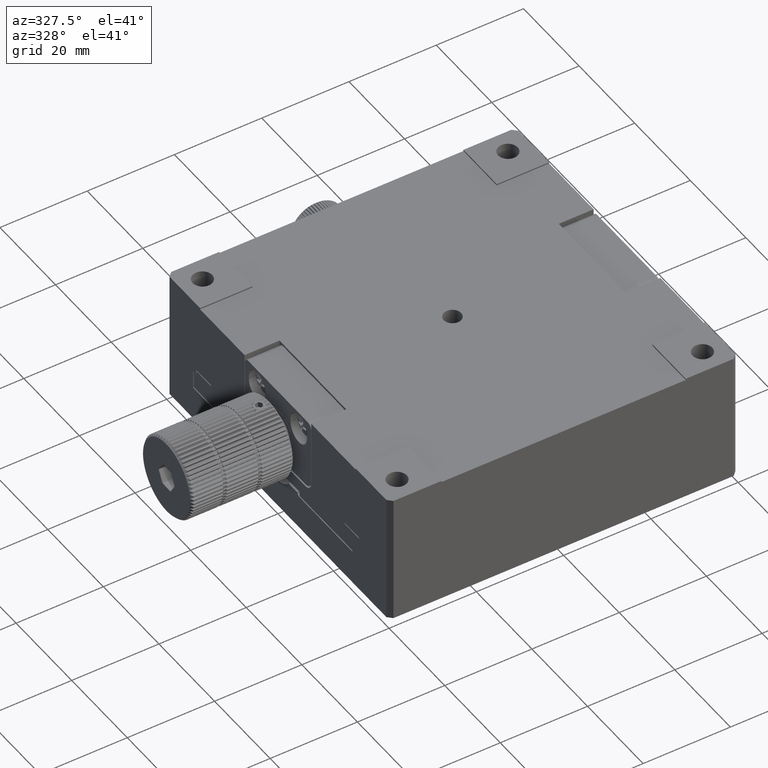
[diagram: clean part render]
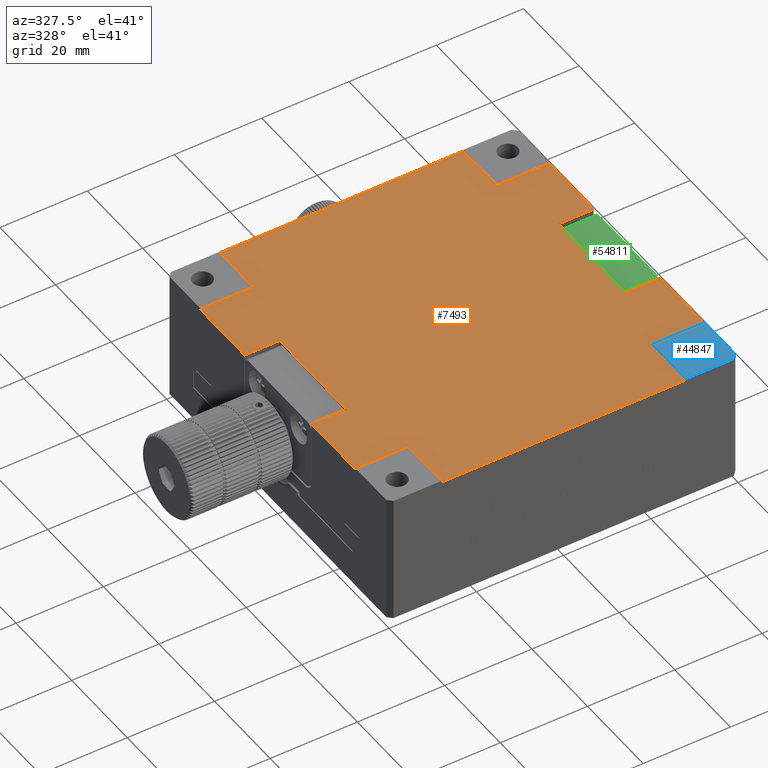
[diagram: same view with three faces highlighted in distinct colors, each labeled with its STEP entity id]
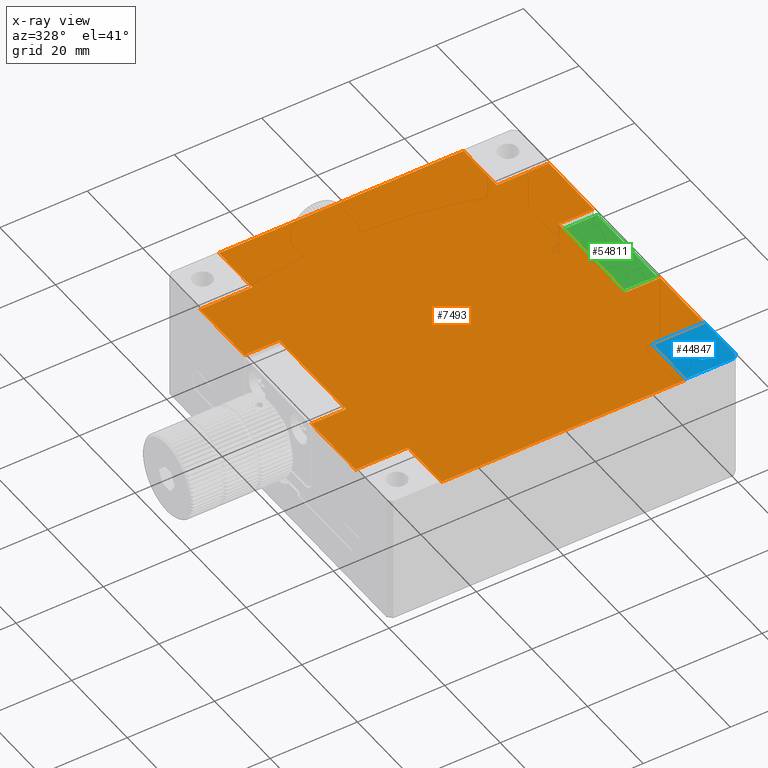
[diagram: x-ray of the same camera — body ghosted, the three highlighted faces saturated]
A machine part, auxiliary view with three faces highlighted in distinct colors.
The next image is the same camera in x-ray (body ghosted, the three faces saturated) — at least one of them is partly hidden behind the body in this view.
Their STEP definitions:

[orange] entity #7493 — the highlighted planar face has unit normal (0, 0, 1).
#352 = VERTEX_POINT ( 'NONE', #18145 ) ;
#856 = CARTESIAN_POINT ( 'NONE',  ( 0.000000000000000000, -28.00000000000000000, 129.7000000000000171 ) ) ;
#1447 = VERTEX_POINT ( 'NONE', #61356 ) ;
#1528 = CARTESIAN_POINT ( 'NONE',  ( -28.00000000000000355, 28.00000000000001421, 129.7000000000000171 ) ) ;
#2231 = ORIENTED_EDGE ( 'NONE', *, *, #67319, .T. ) ;
#2353 = CARTESIAN_POINT ( 'NONE',  ( -32.00000000000000000, -12.00000000000000000, 129.7000000000000171 ) ) ;
#2678 = EDGE_CURVE ( 'NONE', #78508, #37723, #74034, .T. ) ;
#4283 = LINE ( 'NONE', #25184, #82850 ) ;
#4801 = VERTEX_POINT ( 'NONE', #48318 ) ;
#5652 = DIRECTION ( 'NONE',  ( -1.000000000000000000, -0.000000000000000000, 0.000000000000000000 ) ) ;
#5664 = AXIS2_PLACEMENT_3D ( 'NONE', #89129, #34712, #69627 ) ;
#5899 = ORIENTED_EDGE ( 'NONE', *, *, #30148, .T. ) ;
#6060 = VECTOR ( 'NONE', #78170, 1000.000000000000000 ) ;
#6080 = CARTESIAN_POINT ( 'NONE',  ( 32.00000000000000711, -12.00000000000000178, 129.7000000000000171 ) ) ;
#7385 = EDGE_CURVE ( 'NONE', #74683, #43102, #75953, .T. ) ;
#7452 = CARTESIAN_POINT ( 'NONE',  ( 28.00000000000001066, 6.938893903907228378E-15, 129.7000000000000171 ) ) ;
#7493 = ADVANCED_FACE ( 'NONE', ( #35623, #75505 ), #35175, .T. ) ;
#7577 = ORIENTED_EDGE ( 'NONE', *, *, #73062, .T. ) ;
#7629 = LINE ( 'NONE', #856, #11258 ) ;
#7876 = EDGE_CURVE ( 'NONE', #15834, #15834, #36074, .T. ) ;
#7977 = CARTESIAN_POINT ( 'NONE',  ( -28.00000000000000355, 6.938893903907228378E-15, 129.7000000000000171 ) ) ;
#7995 = VERTEX_POINT ( 'NONE', #2353 ) ;
#8012 = VERTEX_POINT ( 'NONE', #77653 ) ;
#8711 = DIRECTION ( 'NONE',  ( 0.000000000000000000, -1.000000000000000000, -0.000000000000000000 ) ) ;
#9512 = VERTEX_POINT ( 'NONE', #38923 ) ;
#11172 = ORIENTED_EDGE ( 'NONE', *, *, #29482, .T. ) ;
#11202 = VERTEX_POINT ( 'NONE', #20922 ) ;
#11258 = VECTOR ( 'NONE', #28537, 1000.000000000000000 ) ;
#12250 = LINE ( 'NONE', #19515, #70641 ) ;
#13392 = CARTESIAN_POINT ( 'NONE',  ( 28.00000000000001066, 6.938893903907228378E-15, 129.7000000000000171 ) ) ;
#13845 = VECTOR ( 'NONE', #82331, 1000.000000000000000 ) ;
#14656 = LINE ( 'NONE', #70883, #65927 ) ;
#14693 = CARTESIAN_POINT ( 'NONE',  ( 0.000000000000000000, 12.00000000000000000, 129.7000000000000171 ) ) ;
#15709 = ORIENTED_EDGE ( 'NONE', *, *, #16547, .T. ) ;
#15743 = VECTOR ( 'NONE', #35691, 1000.000000000000000 ) ;
#15834 = VERTEX_POINT ( 'NONE', #62136 ) ;
#16547 = EDGE_CURVE ( 'NONE', #9512, #34412, #47393, .T. ) ;
#16903 = VERTEX_POINT ( 'NONE', #59522 ) ;
#18145 = CARTESIAN_POINT ( 'NONE',  ( 28.00000000000001066, -28.00000000000000000, 129.7000000000000171 ) ) ;
#19394 = EDGE_CURVE ( 'NONE', #16903, #8012, #82977, .T. ) ;
#19515 = CARTESIAN_POINT ( 'NONE',  ( 0.000000000000000000, 28.00000000000001776, 129.7000000000000171 ) ) ;
#20657 = CARTESIAN_POINT ( 'NONE',  ( 40.00000000000000711, 6.938893903907228378E-15, 129.7000000000000171 ) ) ;
#20922 = CARTESIAN_POINT ( 'NONE',  ( 40.00000000000000000, 12.00000000000000355, 129.7000000000000171 ) ) ;
#22782 = ORIENTED_EDGE ( 'NONE', *, *, #32728, .T. ) ;
#22861 = LINE ( 'NONE', #64162, #6060 ) ;
#23930 = CARTESIAN_POINT ( 'NONE',  ( -40.00000000000000000, 28.00000000000001776, 129.7000000000000171 ) ) ;
#25184 = CARTESIAN_POINT ( 'NONE',  ( 0.000000000000000000, 40.00000000000000000, 129.7000000000000171 ) ) ;
#25746 = CARTESIAN_POINT ( 'NONE',  ( 40.00000000000000000, 28.00000000000001776, 129.7000000000000171 ) ) ;
#26017 = LINE ( 'NONE', #79982, #58206 ) ;
#26255 = EDGE_LOOP ( 'NONE', ( #71275 ) ) ;
#28537 = DIRECTION ( 'NONE',  ( 1.000000000000000000, 0.000000000000000000, -0.000000000000000000 ) ) ;
#28725 = VERTEX_POINT ( 'NONE', #73562 ) ;
#29482 = EDGE_CURVE ( 'NONE', #352, #82356, #7629, .T. ) ;
#29538 = EDGE_LOOP ( 'NONE', ( #66339, #40782, #37502, #71255, #43757, #89173, #66709, #5899, #40094, #7577, #11172, #68374, #78624, #45895, #22782, #38399, #2231, #58237, #85563, #15709 ) ) ;
#30148 = EDGE_CURVE ( 'NONE', #66509, #16903, #70143, .T. ) ;
#32348 = DIRECTION ( 'NONE',  ( -1.000000000000000000, -0.000000000000000000, 0.000000000000000000 ) ) ;
#32698 = EDGE_CURVE ( 'NONE', #37723, #28725, #69578, .T. ) ;
#32728 = EDGE_CURVE ( 'NONE', #28725, #11202, #63679, .T. ) ;
#33211 = VECTOR ( 'NONE', #41536, 1000.000000000000000 ) ;
#34412 = VERTEX_POINT ( 'NONE', #1528 ) ;
#34440 = LINE ( 'NONE', #66793, #36617 ) ;
#34712 = DIRECTION ( 'NONE',  ( 0.000000000000000000, 0.000000000000000000, 1.000000000000000000 ) ) ;
#35175 = PLANE ( 'NONE',  #5664 ) ;
#35433 = LINE ( 'NONE', #63103, #37955 ) ;
#35514 = DIRECTION ( 'NONE',  ( 1.000000000000000000, 0.000000000000000000, 0.000000000000000000 ) ) ;
#35623 = FACE_OUTER_BOUND ( 'NONE', #29538, .T. ) ;
#35691 = DIRECTION ( 'NONE',  ( 0.000000000000000000, -1.000000000000000000, -0.000000000000000000 ) ) ;
#36074 = CIRCLE ( 'NONE', #70831, 2.000000000000000000 ) ;
#36617 = VECTOR ( 'NONE', #89302, 1000.000000000000000 ) ;
#37003 = EDGE_CURVE ( 'NONE', #4801, #66509, #34440, .T. ) ;
#37502 = ORIENTED_EDGE ( 'NONE', *, *, #48851, .T. ) ;
#37723 = VERTEX_POINT ( 'NONE', #6080 ) ;
#37955 = VECTOR ( 'NONE', #42681, 1000.000000000000000 ) ;
#38399 = ORIENTED_EDGE ( 'NONE', *, *, #47933, .T. ) ;
#38727 = DIRECTION ( 'NONE',  ( -0.000000000000000000, 1.000000000000000000, 0.000000000000000000 ) ) ;
#38923 = CARTESIAN_POINT ( 'NONE',  ( -28.00000000000000355, 40.00000000000000711, 129.6999999999999886 ) ) ;
#39211 = EDGE_CURVE ( 'NONE', #1447, #4801, #50902, .T. ) ;
#39408 = VECTOR ( 'NONE', #48332, 1000.000000000000000 ) ;
#39613 = CARTESIAN_POINT ( 'NONE',  ( 0.000000000000000000, -12.00000000000000000, 129.7000000000000171 ) ) ;
#40005 = EDGE_CURVE ( 'NONE', #7995, #1447, #14656, .T. ) ;
#40094 = ORIENTED_EDGE ( 'NONE', *, *, #19394, .T. ) ;
#40782 = ORIENTED_EDGE ( 'NONE', *, *, #81691, .T. ) ;
#40805 = VERTEX_POINT ( 'NONE', #25746 ) ;
#41227 = VERTEX_POINT ( 'NONE', #75040 ) ;
#41536 = DIRECTION ( 'NONE',  ( -0.000000000000000000, 1.000000000000000000, 0.000000000000000000 ) ) ;
#41985 = VECTOR ( 'NONE', #55509, 1000.000000000000000 ) ;
#42681 = DIRECTION ( 'NONE',  ( 0.000000000000000000, -1.000000000000000000, -0.000000000000000000 ) ) ;
#42800 = CARTESIAN_POINT ( 'NONE',  ( -40.00000000000000000, 6.938893903907228378E-15, 129.7000000000000171 ) ) ;
#43102 = VERTEX_POINT ( 'NONE', #89463 ) ;
#43601 = CARTESIAN_POINT ( 'NONE',  ( 0.000000000000000000, 28.00000000000001421, 129.7000000000000171 ) ) ;
#43757 = ORIENTED_EDGE ( 'NONE', *, *, #40005, .T. ) ;
#45895 = ORIENTED_EDGE ( 'NONE', *, *, #32698, .T. ) ;
#46022 = CARTESIAN_POINT ( 'NONE',  ( 0.000000000000000000, 12.00000000000000000, 129.7000000000000171 ) ) ;
#47208 = DIRECTION ( 'NONE',  ( -1.000000000000000000, -0.000000000000000000, 0.000000000000000000 ) ) ;
#47393 = LINE ( 'NONE', #67812, #64446 ) ;
#47933 = EDGE_CURVE ( 'NONE', #11202, #40805, #26017, .T. ) ;
#48230 = VECTOR ( 'NONE', #70364, 1000.000000000000000 ) ;
#48318 = CARTESIAN_POINT ( 'NONE',  ( -40.00000000000000000, -27.99999999999999645, 129.7000000000000171 ) ) ;
#48332 = DIRECTION ( 'NONE',  ( -0.000000000000000000, 1.000000000000000000, 0.000000000000000000 ) ) ;
#48851 = EDGE_CURVE ( 'NONE', #41227, #72671, #80464, .T. ) ;
#49605 = CARTESIAN_POINT ( 'NONE',  ( 32.00000000000000711, 6.938893903907228378E-15, 129.7000000000000171 ) ) ;
#49864 = DIRECTION ( 'NONE',  ( 1.000000000000000000, 0.000000000000000000, -0.000000000000000000 ) ) ;
#49912 = VECTOR ( 'NONE', #8711, 1000.000000000000000 ) ;
#50902 = LINE ( 'NONE', #42800, #49912 ) ;
#54250 = LINE ( 'NONE', #20657, #39408 ) ;
#54490 = VECTOR ( 'NONE', #68672, 1000.000000000000000 ) ;
#55509 = DIRECTION ( 'NONE',  ( -0.000000000000000000, 1.000000000000000000, 0.000000000000000000 ) ) ;
#57174 = EDGE_CURVE ( 'NONE', #82356, #78508, #54250, .T. ) ;
#58206 = VECTOR ( 'NONE', #38727, 1000.000000000000000 ) ;
#58237 = ORIENTED_EDGE ( 'NONE', *, *, #7385, .T. ) ;
#59522 = CARTESIAN_POINT ( 'NONE',  ( -27.99999999999999645, -39.99999999999997868, 129.6999999999999886 ) ) ;
#61356 = CARTESIAN_POINT ( 'NONE',  ( -40.00000000000000000, -12.00000000000000000, 129.7000000000000171 ) ) ;
#62136 = CARTESIAN_POINT ( 'NONE',  ( 2.000000000000000000, 0.000000000000000000, 129.7000000000000171 ) ) ;
#62138 = CARTESIAN_POINT ( 'NONE',  ( 0.000000000000000000, -39.99999999999998579, 129.7000000000000171 ) ) ;
#62787 = DIRECTION ( 'NONE',  ( 1.000000000000000000, 0.000000000000000000, -0.000000000000000000 ) ) ;
#63103 = CARTESIAN_POINT ( 'NONE',  ( -40.00000000000000711, 6.938893903907228378E-15, 129.7000000000000171 ) ) ;
#63574 = LINE ( 'NONE', #43601, #48230 ) ;
#63679 = LINE ( 'NONE', #14693, #72359 ) ;
#64162 = CARTESIAN_POINT ( 'NONE',  ( -32.00000000000000000, 6.938893903907228378E-15, 129.7000000000000171 ) ) ;
#64446 = VECTOR ( 'NONE', #80929, 1000.000000000000000 ) ;
#64862 = CARTESIAN_POINT ( 'NONE',  ( 40.00000000000000000, -12.00000000000000000, 129.7000000000000171 ) ) ;
#65927 = VECTOR ( 'NONE', #84916, 1000.000000000000000 ) ;
#66339 = ORIENTED_EDGE ( 'NONE', *, *, #77082, .T. ) ;
#66509 = VERTEX_POINT ( 'NONE', #73146 ) ;
#66709 = ORIENTED_EDGE ( 'NONE', *, *, #37003, .T. ) ;
#66793 = CARTESIAN_POINT ( 'NONE',  ( 0.000000000000000000, -27.99999999999999645, 129.7000000000000171 ) ) ;
#67180 = CARTESIAN_POINT ( 'NONE',  ( -32.00000000000000000, 12.00000000000000178, 129.7000000000000171 ) ) ;
#67319 = EDGE_CURVE ( 'NONE', #40805, #74683, #12250, .T. ) ;
#67812 = CARTESIAN_POINT ( 'NONE',  ( -28.00000000000000355, 6.938893903907228378E-15, 129.7000000000000171 ) ) ;
#68374 = ORIENTED_EDGE ( 'NONE', *, *, #57174, .T. ) ;
#68672 = DIRECTION ( 'NONE',  ( 1.000000000000000000, 0.000000000000000000, -0.000000000000000000 ) ) ;
#69578 = LINE ( 'NONE', #49605, #41985 ) ;
#69627 = DIRECTION ( 'NONE',  ( 1.000000000000000000, 0.000000000000000000, -0.000000000000000000 ) ) ;
#70143 = LINE ( 'NONE', #7977, #15743 ) ;
#70364 = DIRECTION ( 'NONE',  ( -1.000000000000000000, -0.000000000000000000, 0.000000000000000000 ) ) ;
#70450 = VECTOR ( 'NONE', #49864, 1000.000000000000000 ) ;
#70641 = VECTOR ( 'NONE', #47208, 1000.000000000000000 ) ;
#70831 = AXIS2_PLACEMENT_3D ( 'NONE', #74973, #83104, #35514 ) ;
#70883 = CARTESIAN_POINT ( 'NONE',  ( 0.000000000000000000, -12.00000000000000000, 129.7000000000000171 ) ) ;
#71255 = ORIENTED_EDGE ( 'NONE', *, *, #89371, .T. ) ;
#71275 = ORIENTED_EDGE ( 'NONE', *, *, #7876, .T. ) ;
#71764 = CARTESIAN_POINT ( 'NONE',  ( 40.00000000000000711, -27.99999999999999645, 129.7000000000000171 ) ) ;
#72359 = VECTOR ( 'NONE', #62787, 1000.000000000000000 ) ;
#72671 = VERTEX_POINT ( 'NONE', #67180 ) ;
#73062 = EDGE_CURVE ( 'NONE', #8012, #352, #87321, .T. ) ;
#73146 = CARTESIAN_POINT ( 'NONE',  ( -28.00000000000000355, -27.99999999999999645, 129.7000000000000171 ) ) ;
#73562 = CARTESIAN_POINT ( 'NONE',  ( 32.00000000000000711, 12.00000000000000000, 129.7000000000000171 ) ) ;
#74034 = LINE ( 'NONE', #39613, #74652 ) ;
#74652 = VECTOR ( 'NONE', #32348, 1000.000000000000000 ) ;
#74683 = VERTEX_POINT ( 'NONE', #81468 ) ;
#74973 = CARTESIAN_POINT ( 'NONE',  ( 0.000000000000000000, 0.000000000000000000, 129.7000000000000171 ) ) ;
#75040 = CARTESIAN_POINT ( 'NONE',  ( -40.00000000000000711, 12.00000000000000178, 129.7000000000000171 ) ) ;
#75505 = FACE_BOUND ( 'NONE', #26255, .T. ) ;
#75953 = LINE ( 'NONE', #7452, #33211 ) ;
#76063 = VERTEX_POINT ( 'NONE', #23930 ) ;
#77082 = EDGE_CURVE ( 'NONE', #34412, #76063, #63574, .T. ) ;
#77653 = CARTESIAN_POINT ( 'NONE',  ( 28.00000000000001066, -39.99999999999998579, 129.6999999999999886 ) ) ;
#78170 = DIRECTION ( 'NONE',  ( 0.000000000000000000, -1.000000000000000000, -0.000000000000000000 ) ) ;
#78508 = VERTEX_POINT ( 'NONE', #64862 ) ;
#78624 = ORIENTED_EDGE ( 'NONE', *, *, #2678, .T. ) ;
#79982 = CARTESIAN_POINT ( 'NONE',  ( 40.00000000000000000, 6.938893903907228378E-15, 129.7000000000000171 ) ) ;
#80464 = LINE ( 'NONE', #46022, #54490 ) ;
#80929 = DIRECTION ( 'NONE',  ( 0.000000000000000000, -1.000000000000000000, -0.000000000000000000 ) ) ;
#81468 = CARTESIAN_POINT ( 'NONE',  ( 28.00000000000001066, 28.00000000000001066, 129.7000000000000171 ) ) ;
#81691 = EDGE_CURVE ( 'NONE', #76063, #41227, #35433, .T. ) ;
#82331 = DIRECTION ( 'NONE',  ( -0.000000000000000000, 1.000000000000000000, 0.000000000000000000 ) ) ;
#82356 = VERTEX_POINT ( 'NONE', #71764 ) ;
#82850 = VECTOR ( 'NONE', #5652, 1000.000000000000000 ) ;
#82977 = LINE ( 'NONE', #62138, #70450 ) ;
#83104 = DIRECTION ( 'NONE',  ( -0.000000000000000000, -0.000000000000000000, -1.000000000000000000 ) ) ;
#84916 = DIRECTION ( 'NONE',  ( -1.000000000000000000, -0.000000000000000000, 0.000000000000000000 ) ) ;
#85563 = ORIENTED_EDGE ( 'NONE', *, *, #89036, .T. ) ;
#87321 = LINE ( 'NONE', #13392, #13845 ) ;
#89036 = EDGE_CURVE ( 'NONE', #43102, #9512, #4283, .T. ) ;
#89129 = CARTESIAN_POINT ( 'NONE',  ( 0.000000000000000000, 6.938893903907228378E-15, 129.7000000000000171 ) ) ;
#89173 = ORIENTED_EDGE ( 'NONE', *, *, #39211, .T. ) ;
#89302 = DIRECTION ( 'NONE',  ( 1.000000000000000000, 0.000000000000000000, -0.000000000000000000 ) ) ;
#89371 = EDGE_CURVE ( 'NONE', #72671, #7995, #22861, .T. ) ;
#89463 = CARTESIAN_POINT ( 'NONE',  ( 28.00000000000001066, 40.00000000000001421, 129.6999999999999886 ) ) ;

[blue] entity #44847 — the highlighted planar face has unit normal (0, 0, 1).
#2505 = FACE_BOUND ( 'NONE', #16158, .T. ) ;
#4270 = DIRECTION ( 'NONE',  ( 1.000000000000000000, 2.891205793294678326E-16, -0.000000000000000000 ) ) ;
#4616 = DIRECTION ( 'NONE',  ( -0.000000000000000000, -0.000000000000000000, -1.000000000000000000 ) ) ;
#5879 = VERTEX_POINT ( 'NONE', #44844 ) ;
#8172 = ORIENTED_EDGE ( 'NONE', *, *, #64259, .T. ) ;
#8704 = LINE ( 'NONE', #49572, #35140 ) ;
#9891 = EDGE_CURVE ( 'NONE', #75848, #53118, #34699, .T. ) ;
#13225 = ORIENTED_EDGE ( 'NONE', *, *, #57918, .T. ) ;
#15486 = ORIENTED_EDGE ( 'NONE', *, *, #41066, .F. ) ;
#15682 = FACE_OUTER_BOUND ( 'NONE', #47008, .T. ) ;
#16158 = EDGE_LOOP ( 'NONE', ( #28006 ) ) ;
#16968 = EDGE_CURVE ( 'NONE', #58898, #58898, #64520, .T. ) ;
#18850 = CARTESIAN_POINT ( 'NONE',  ( 40.00000000000000000, -39.99999999999998579, 130.0000000000000000 ) ) ;
#19465 = CARTESIAN_POINT ( 'NONE',  ( 38.99999999999999289, -39.99999999999997868, 130.0000000000000000 ) ) ;
#20205 = ORIENTED_EDGE ( 'NONE', *, *, #25810, .F. ) ;
#25810 = EDGE_CURVE ( 'NONE', #53118, #78046, #41609, .T. ) ;
#26367 = CARTESIAN_POINT ( 'NONE',  ( 28.00000000000000355, -27.99999999999999645, 130.0000000000000000 ) ) ;
#28006 = ORIENTED_EDGE ( 'NONE', *, *, #16968, .T. ) ;
#28851 = PLANE ( 'NONE',  #36363 ) ;
#30394 = VERTEX_POINT ( 'NONE', #56761 ) ;
#31058 = VECTOR ( 'NONE', #69695, 1000.000000000000000 ) ;
#34699 = LINE ( 'NONE', #89563, #59391 ) ;
#35140 = VECTOR ( 'NONE', #42789, 1000.000000000000114 ) ;
#36363 = AXIS2_PLACEMENT_3D ( 'NONE', #85925, #50585, #50148 ) ;
#37023 = CARTESIAN_POINT ( 'NONE',  ( 40.00000000000000711, -27.99999999999999645, 130.0000000000000000 ) ) ;
#37850 = VECTOR ( 'NONE', #88237, 1000.000000000000000 ) ;
#41066 = EDGE_CURVE ( 'NONE', #78046, #30394, #85511, .T. ) ;
#41609 = LINE ( 'NONE', #69248, #31058 ) ;
#42484 = ORIENTED_EDGE ( 'NONE', *, *, #9891, .F. ) ;
#42789 = DIRECTION ( 'NONE',  ( 0.7071067811865402453, 0.7071067811865549002, 0.000000000000000000 ) ) ;
#44844 = CARTESIAN_POINT ( 'NONE',  ( 40.00000000000000000, -38.99999999999996447, 130.0000000000000000 ) ) ;
#44847 = ADVANCED_FACE ( 'NONE', ( #15682, #2505 ), #28851, .T. ) ;
#47008 = EDGE_LOOP ( 'NONE', ( #15486, #20205, #42484, #13225, #8172 ) ) ;
#49572 = CARTESIAN_POINT ( 'NONE',  ( 39.00000000000000000, -39.99999999999998579, 130.0000000000000000 ) ) ;
#50148 = DIRECTION ( 'NONE',  ( 1.000000000000000000, 0.000000000000000000, -0.000000000000000000 ) ) ;
#50585 = DIRECTION ( 'NONE',  ( 0.000000000000000000, 0.000000000000000000, 1.000000000000000000 ) ) ;
#53118 = VERTEX_POINT ( 'NONE', #73409 ) ;
#56761 = CARTESIAN_POINT ( 'NONE',  ( 40.00000000000000711, -27.99999999999999645, 130.0000000000000000 ) ) ;
#57918 = EDGE_CURVE ( 'NONE', #75848, #5879, #8704, .T. ) ;
#58898 = VERTEX_POINT ( 'NONE', #59325 ) ;
#59080 = DIRECTION ( 'NONE',  ( -1.000000000000000000, 0.000000000000000000, 0.000000000000000000 ) ) ;
#59325 = CARTESIAN_POINT ( 'NONE',  ( 32.74999999999994316, -34.99999999999990763, 130.0000000000000000 ) ) ;
#59391 = VECTOR ( 'NONE', #75939, 1000.000000000000000 ) ;
#64259 = EDGE_CURVE ( 'NONE', #5879, #30394, #80971, .T. ) ;
#64520 = CIRCLE ( 'NONE', #89085, 2.250000000000001776 ) ;
#65902 = CARTESIAN_POINT ( 'NONE',  ( 34.99999999999995026, -34.99999999999990763, 130.0000000000000000 ) ) ;
#69248 = CARTESIAN_POINT ( 'NONE',  ( 28.00000000000001066, -40.00000000000000000, 130.0000000000000000 ) ) ;
#69695 = DIRECTION ( 'NONE',  ( -2.891205793294678326E-16, 1.000000000000000000, -0.000000000000000000 ) ) ;
#71750 = VECTOR ( 'NONE', #4270, 1000.000000000000000 ) ;
#73409 = CARTESIAN_POINT ( 'NONE',  ( 28.00000000000000711, -39.99999999999999289, 130.0000000000000000 ) ) ;
#75848 = VERTEX_POINT ( 'NONE', #19465 ) ;
#75939 = DIRECTION ( 'NONE',  ( -1.000000000000000000, -0.000000000000000000, -0.000000000000000000 ) ) ;
#78046 = VERTEX_POINT ( 'NONE', #26367 ) ;
#80971 = LINE ( 'NONE', #18850, #37850 ) ;
#85511 = LINE ( 'NONE', #37023, #71750 ) ;
#85925 = CARTESIAN_POINT ( 'NONE',  ( -40.00000000000000000, -39.99999999999998579, 130.0000000000000000 ) ) ;
#88237 = DIRECTION ( 'NONE',  ( 0.000000000000000000, 1.000000000000000000, -0.000000000000000000 ) ) ;
#89085 = AXIS2_PLACEMENT_3D ( 'NONE', #65902, #4616, #59080 ) ;
#89563 = CARTESIAN_POINT ( 'NONE',  ( 0.000000000000000000, -39.99999999999997868, 130.0000000000000000 ) ) ;

[green] entity #54811 — the highlighted planar face has unit normal (0, -0, -1).
#2048 = VECTOR ( 'NONE', #21327, 1000.000000000000000 ) ;
#5269 = EDGE_CURVE ( 'NONE', #9257, #29750, #16690, .T. ) ;
#9257 = VERTEX_POINT ( 'NONE', #55301 ) ;
#10760 = LINE ( 'NONE', #66564, #41007 ) ;
#16690 = LINE ( 'NONE', #65232, #44566 ) ;
#17571 = DIRECTION ( 'NONE',  ( 0.000000000000000000, 1.000000000000000000, 0.000000000000000000 ) ) ;
#21327 = DIRECTION ( 'NONE',  ( 1.000000000000000000, 0.000000000000000000, 0.000000000000000000 ) ) ;
#22206 = EDGE_CURVE ( 'NONE', #29750, #48329, #80935, .T. ) ;
#23940 = DIRECTION ( 'NONE',  ( -1.000000000000000000, -0.000000000000000000, -0.000000000000000000 ) ) ;
#24380 = CARTESIAN_POINT ( 'NONE',  ( 32.00000000000000711, -10.70000000000000284, 129.2000000000000455 ) ) ;
#29038 = LINE ( 'NONE', #63974, #2048 ) ;
#29750 = VERTEX_POINT ( 'NONE', #24380 ) ;
#30917 = ORIENTED_EDGE ( 'NONE', *, *, #5269, .F. ) ;
#37204 = EDGE_CURVE ( 'NONE', #9257, #59799, #10760, .T. ) ;
#39233 = DIRECTION ( 'NONE',  ( 0.000000000000000000, 1.000000000000000000, -2.775557561562890735E-17 ) ) ;
#41007 = VECTOR ( 'NONE', #17571, 1000.000000000000000 ) ;
#44566 = VECTOR ( 'NONE', #23940, 1000.000000000000000 ) ;
#48329 = VERTEX_POINT ( 'NONE', #51213 ) ;
#49545 = DIRECTION ( 'NONE',  ( 0.000000000000000000, -2.775557561562890735E-17, -1.000000000000000000 ) ) ;
#51213 = CARTESIAN_POINT ( 'NONE',  ( 32.00000000000000711, 10.70000000000000284, 129.2000000000000455 ) ) ;
#54811 = ADVANCED_FACE ( 'NONE', ( #83098 ), #89473, .F. ) ;
#55004 = CARTESIAN_POINT ( 'NONE',  ( 40.00000000000000711, 11.90000000000000213, 129.2000000000000455 ) ) ;
#55301 = CARTESIAN_POINT ( 'NONE',  ( 40.00000000000000711, -10.70000000000000284, 129.2000000000000455 ) ) ;
#58410 = CARTESIAN_POINT ( 'NONE',  ( 40.00000000000000711, 10.70000000000000284, 129.2000000000000455 ) ) ;
#59276 = EDGE_LOOP ( 'NONE', ( #30917, #85869, #74052, #75980 ) ) ;
#59799 = VERTEX_POINT ( 'NONE', #58410 ) ;
#62266 = DIRECTION ( 'NONE',  ( 0.000000000000000000, 1.000000000000000000, -2.775557561562890735E-17 ) ) ;
#63194 = AXIS2_PLACEMENT_3D ( 'NONE', #55004, #49545, #62266 ) ;
#63974 = CARTESIAN_POINT ( 'NONE',  ( 40.00000000000000711, 10.70000000000000284, 129.2000000000000455 ) ) ;
#65232 = CARTESIAN_POINT ( 'NONE',  ( 40.00000000000000711, -10.70000000000000284, 129.2000000000000455 ) ) ;
#66564 = CARTESIAN_POINT ( 'NONE',  ( 40.00000000000000711, 11.90000000000000213, 129.2000000000000455 ) ) ;
#68641 = VECTOR ( 'NONE', #39233, 1000.000000000000000 ) ;
#74052 = ORIENTED_EDGE ( 'NONE', *, *, #78226, .F. ) ;
#75980 = ORIENTED_EDGE ( 'NONE', *, *, #22206, .F. ) ;
#78226 = EDGE_CURVE ( 'NONE', #48329, #59799, #29038, .T. ) ;
#80935 = LINE ( 'NONE', #83061, #68641 ) ;
#83061 = CARTESIAN_POINT ( 'NONE',  ( 32.00000000000000711, 11.90000000000000213, 129.2000000000000455 ) ) ;
#83098 = FACE_OUTER_BOUND ( 'NONE', #59276, .T. ) ;
#85869 = ORIENTED_EDGE ( 'NONE', *, *, #37204, .T. ) ;
#89473 = PLANE ( 'NONE',  #63194 ) ;